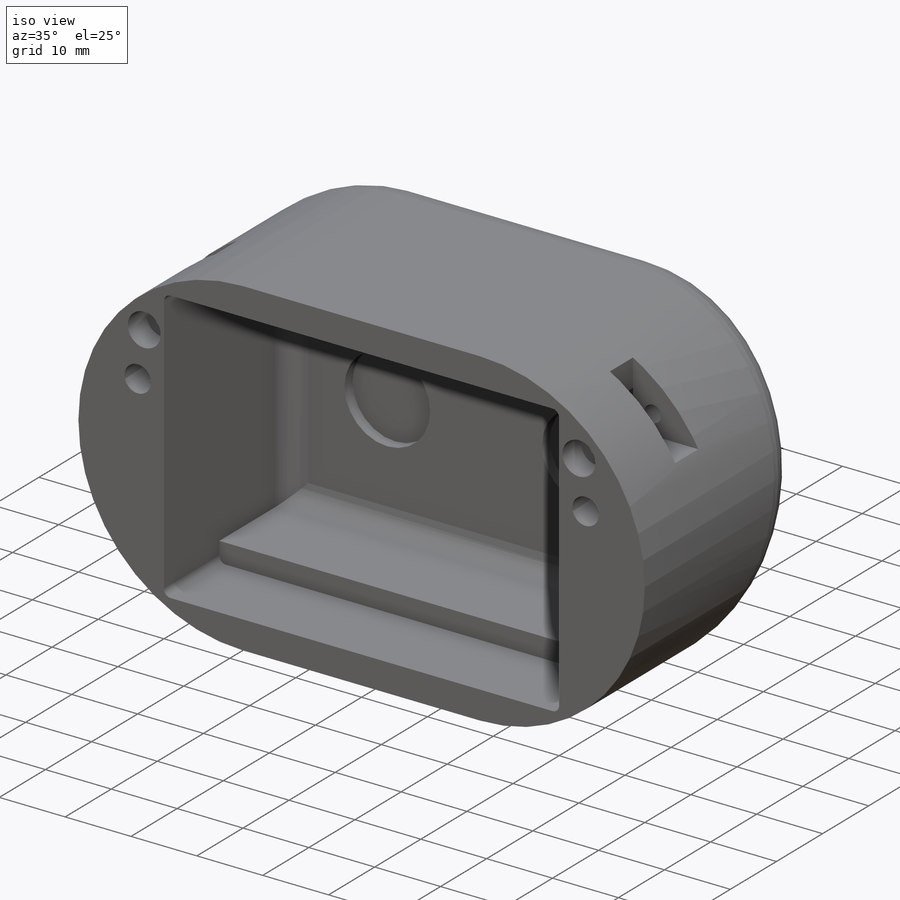
[diagram: iso view]
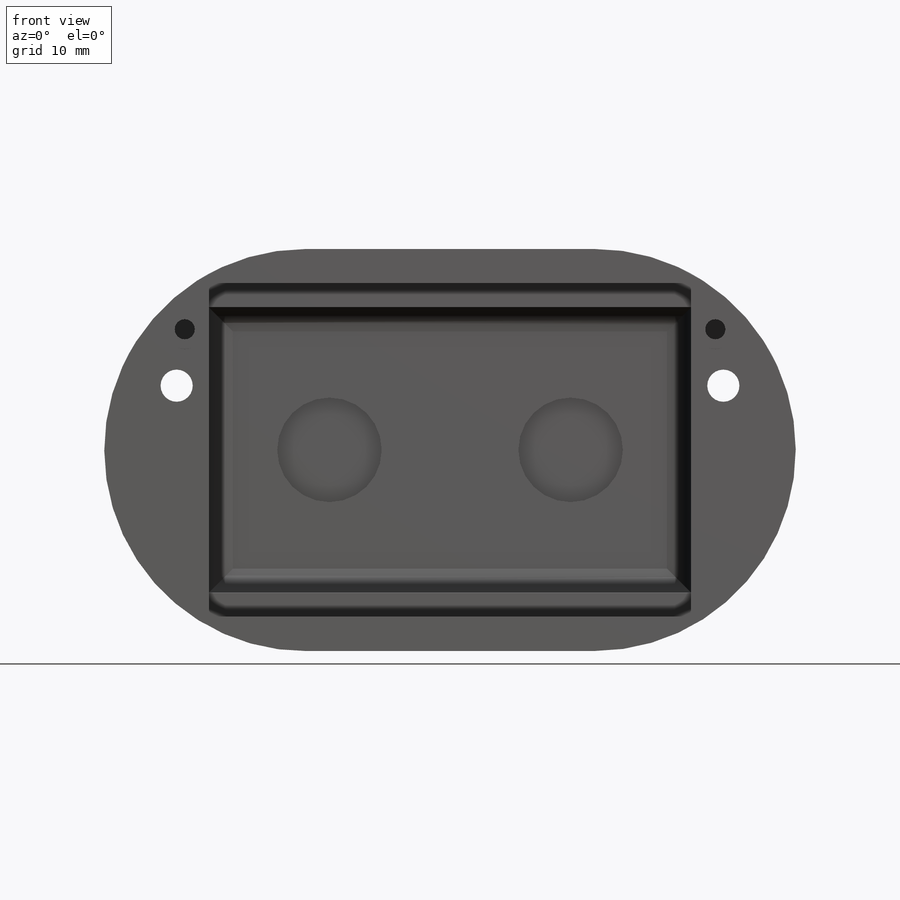
[diagram: front view]
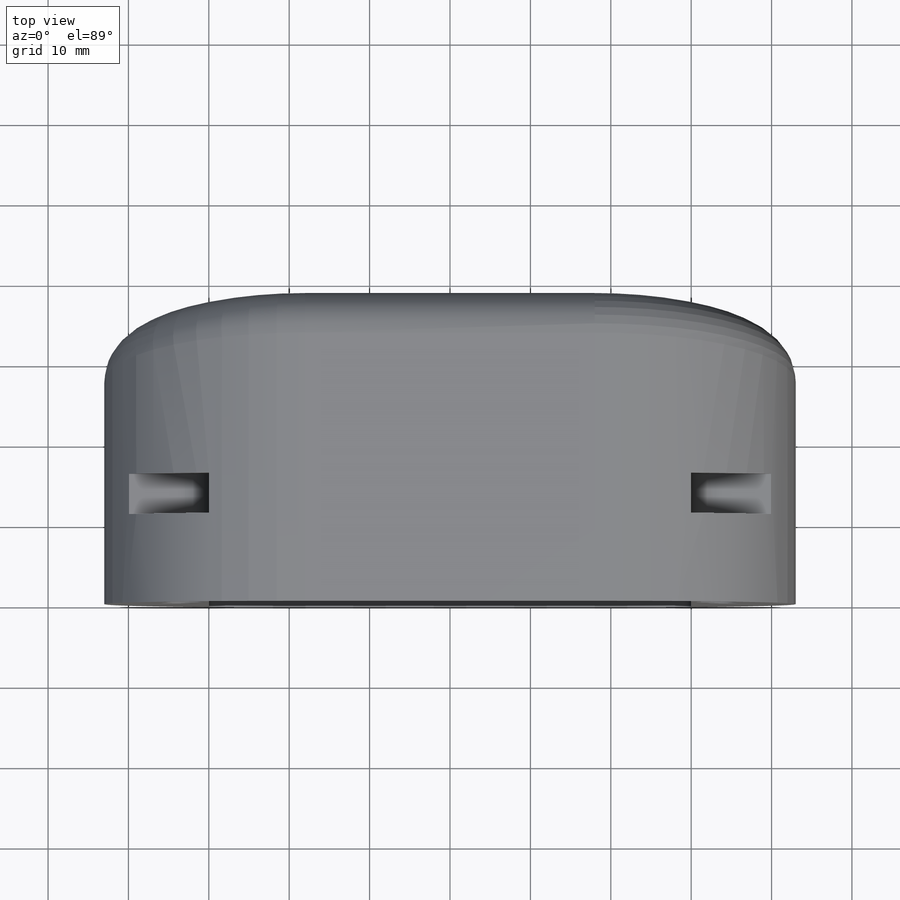
[diagram: top view]
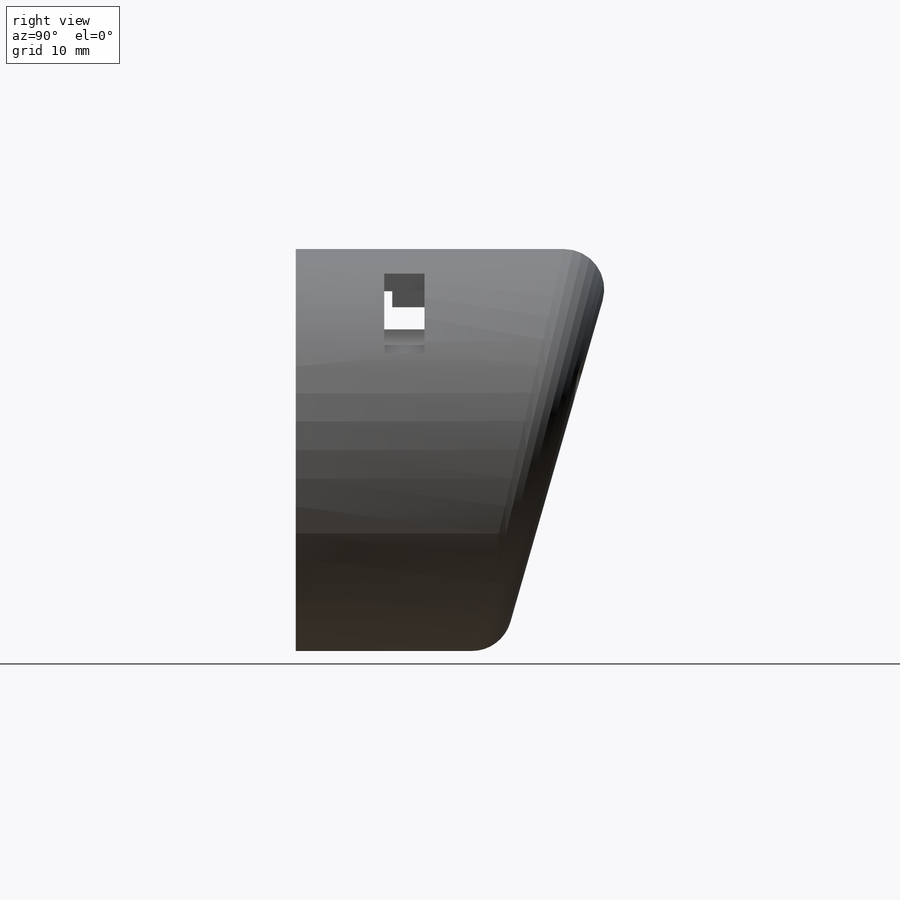
[diagram: right view]
SOLIDWORKS PART (.sldprt)
format: sldprt  version: not decoded by parser v0  size: 377,856 bytes
history: native  units: mm
features: sketch x12, cut_extrude x8, fillet x4, extrude x3, material x1, mirror x1 (+11 scaffold rows collapsed)
feature tree (40):
  scaffold x11  (default folders/planes/origin — collapsed)
  material  "Material <not specified>"
  sketch  "Sketch1"  dims[c1.D1=65.0mm c1.D2=50.0mm c1.D3=68.0mm c2.D1=36.0mm c2.D2=50.0mm]
  extrude  "Boss-Extrude1"  Depth=30mm
  sketch  "Sketch2"  dims[D1=41.5mm D2=60.0mm]
  cut_extrude  "Cut-Extrude1"  Depth=27mm
  sketch  "Sketch3"
  sketch  "Sketch5"  dims[D1=3.0mm D2=3.0mm]
  extrude  "Boss-Extrude2"  Depth=15mm
  fillet  "Fillet2"  Radius=1mm
  fillet  "Fillet3"  Radius=3mm
  sketch  "Sketch6"  dims[D3=3.0mm D1=30.0mm D2=12.0mm]
  cut_extrude  "Cut-Extrude2"  Depth=5mm
  sketch  "Sketch7"  dims[D1=2.5mm D2=33.0mm D3=15.0mm]
  cut_extrude  "Cut-Extrude3"  Depth=25mm
  sketch  "Sketch8"  dims[D1=5.0mm]
  cut_extrude  "Cut-Extrude4"  Depth=4mm
  mirror  "Mirror1"
  sketch  "Sketch9"  dims[D1=13.0mm D2=30.0mm]
  cut_extrude  "Cut-Extrude5"  Depth=1.75mm
  sketch  "Sketch10"  dims[D1=4.0mm D2=8.0mm D3=34.0mm]
  cut_extrude  "Cut-Extrude6"  [1 undecoded]
  sketch  "Sketch12"
  extrude  "Boss-Extrude3"  Depth=10mm
  sketch  "Sketch13"  dims[c1.D1=50.0mm c2.D1=16.0deg]
  cut_extrude  "Cut-Extrude8"  Depth=90mm
  fillet  "Fillet5"  Radius=5mm
  sketch  "Sketch11"  dims[D1=7.0mm D2=7.0mm]
  cut_extrude  "Cut-Extrude7"  Depth=10mm
  fillet  "Fillet4"  Radius=3mm
decode coverage: 24 of 28 modeling features carry decoded parameters
note: 1 parameter value undecoded
note: suppression state not decoded; provenance and decode notes live in map.json
